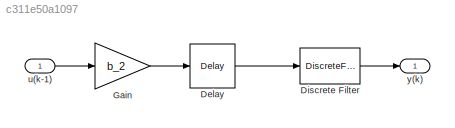
MODEL slx_c311e50a1097
KIND model
CONFIG AbsTol = auto
CONFIG EnableMultiTasking = off
CONFIG FixedStep = auto
CONFIG MaxStep = auto
CONFIG MinStep = auto
CONFIG RelTol = 1e-3
CONFIG SampleTimeConstraint = Unconstrained
CONFIG SolverName = FixedStepDiscrete
CONFIG StartTime = 0.0
CONFIG StopTime = 10.0
BLOCK [Delay] Delay
  DelayLength = d_2
  InputPortMap = u0
  SampleTime = samp_t
BLOCK [DiscreteFilter] Discrete Filter
  Denominator = [1 -a_2]
  InputPortMap = u0
BLOCK [Gain] Gain
  Gain = b_2
BLOCK [Inport] u(k-1)
BLOCK [Outport] y(k)
LINE Delay:1 -> Discrete Filter:1
LINE Discrete Filter:1 -> y(k):1
LINE Gain:1 -> Delay:1
LINE u(k-1):1 -> Gain:1
